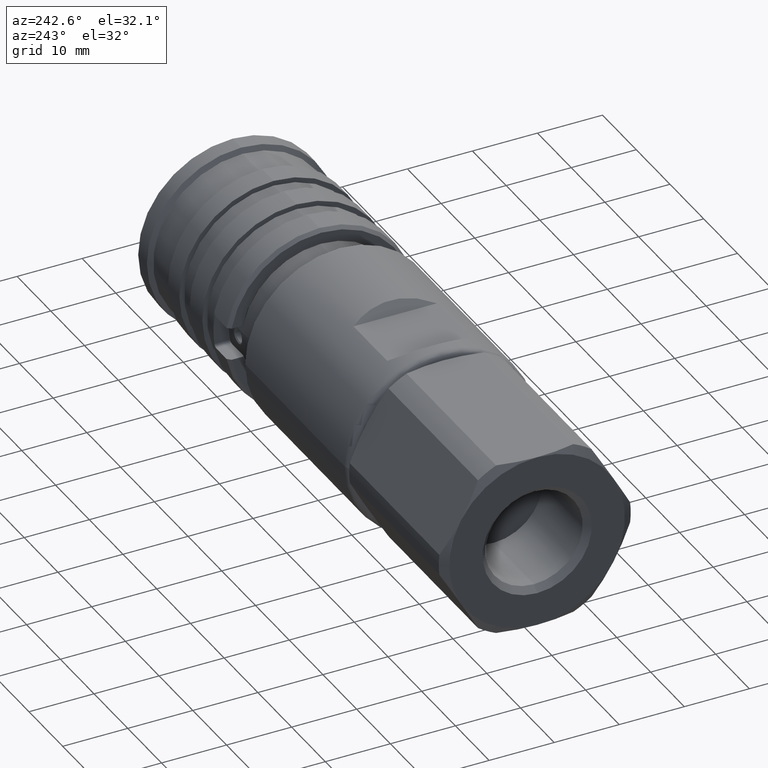
[diagram: clean part render]
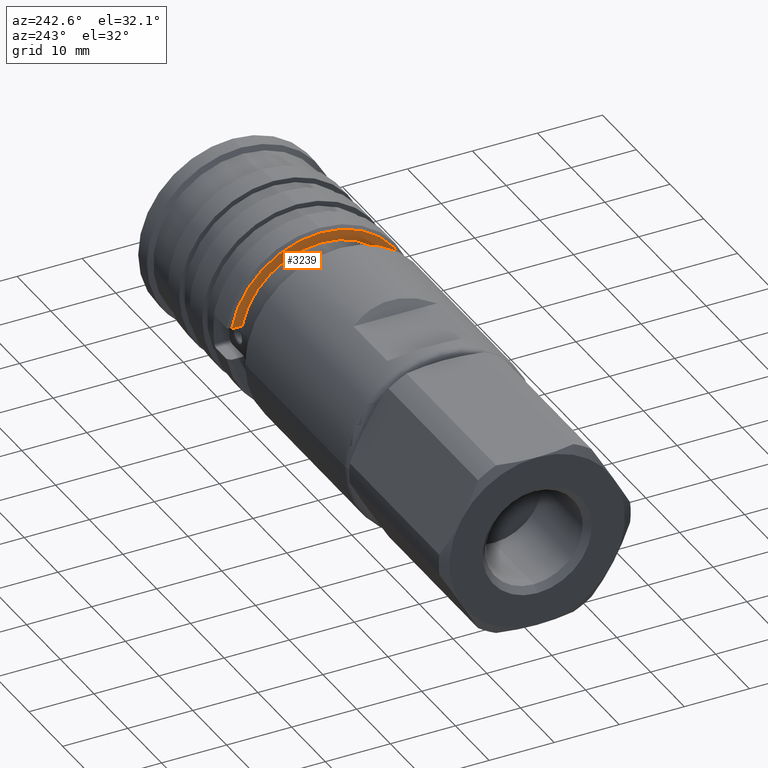
[diagram: same view with one face highlighted and labeled with its STEP entity id]
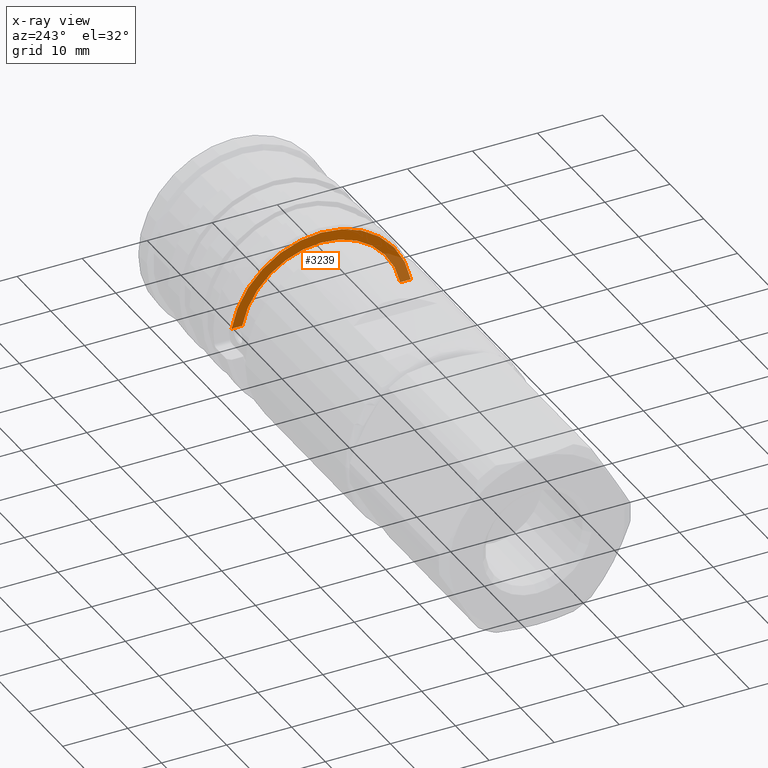
[diagram: x-ray of the same camera — body ghosted, the highlighted face saturated]
A machine part, auxiliary view. The second image highlights one B-rep face of the part: STEP entity #3239.
The next image is the same camera in x-ray: the body ghosted, the highlighted face saturated — about 14% of this face is hidden behind the body in this view.
In plain terms, the highlighted planar face has unit normal (-1, 0, -0).
Its self-contained STEP definition (entity closure, byte-faithful):
#45 = CARTESIAN_POINT ( 'NONE',  ( 18.39999999999999900, -12.14536948799830200, 2.499999999999997300 ) ) ;
#47 = CARTESIAN_POINT ( 'NONE',  ( 18.39999999999999900, -9.884099541659373900E-016, 12.40000000000000400 ) ) ;
#84 = VERTEX_POINT ( 'NONE', #45 ) ;
#85 = VERTEX_POINT ( 'NONE', #47 ) ;
#214 = VERTEX_POINT ( 'NONE', #566 ) ;
#227 = VERTEX_POINT ( 'NONE', #348 ) ;
#229 = VERTEX_POINT ( 'NONE', #346 ) ;
#346 = CARTESIAN_POINT ( 'NONE',  ( 18.39999999999999900, -13.77497731395590500, 2.499999999999996900 ) ) ;
#348 = CARTESIAN_POINT ( 'NONE',  ( 18.39999999999999900, 12.14536948799829800, 2.500000000000000000 ) ) ;
#380 = CARTESIAN_POINT ( 'NONE',  ( 18.39999999999999900, -9.884099541659373900E-016, 8.296725741381169100E-017 ) ) ;
#381 = DIRECTION ( 'NONE',  ( 1.000000000000000000, 0.0000000000000000000, 0.0000000000000000000 ) ) ;
#382 = DIRECTION ( 'NONE',  ( 0.0000000000000000000, 0.0000000000000000000, 1.000000000000000000 ) ) ;
#566 = CARTESIAN_POINT ( 'NONE',  ( 18.39999999999999900, 13.77497731395590100, 2.500000000000000400 ) ) ;
#675 = ORIENTED_EDGE ( 'NONE', *, *, #3020, .T. ) ;
#676 = ORIENTED_EDGE ( 'NONE', *, *, #3028, .T. ) ;
#677 = ORIENTED_EDGE ( 'NONE', *, *, #3029, .T. ) ;
#678 = ORIENTED_EDGE ( 'NONE', *, *, #2729, .T. ) ;
#679 = ORIENTED_EDGE ( 'NONE', *, *, #3030, .T. ) ;
#1100 = CIRCLE ( 'NONE', #3051, 12.40000000000000400 ) ;
#1449 = CIRCLE ( 'NONE', #3148, 13.99999999999999100 ) ;
#1461 = LINE ( 'NONE', #3609, #1463 ) ;
#1463 = VECTOR ( 'NONE', #3610, 1000.000000000000000 ) ;
#1465 = LINE ( 'NONE', #3605, #1468 ) ;
#1466 = CIRCLE ( 'NONE', #3154, 12.40000000000000400 ) ;
#1468 = VECTOR ( 'NONE', #3604, 1000.000000000000000 ) ;
#1507 = FACE_OUTER_BOUND ( 'NONE', #3400, .T. ) ;
#2729 = EDGE_CURVE ( 'NONE', #85, #84, #1100, .T. ) ;
#3020 = EDGE_CURVE ( 'NONE', #229, #214, #1449, .T. ) ;
#3028 = EDGE_CURVE ( 'NONE', #214, #227, #1461, .T. ) ;
#3029 = EDGE_CURVE ( 'NONE', #227, #85, #1466, .T. ) ;
#3030 = EDGE_CURVE ( 'NONE', #84, #229, #1465, .T. ) ;
#3051 = AXIS2_PLACEMENT_3D ( 'NONE', #380, #381, #382 ) ;
#3148 = AXIS2_PLACEMENT_3D ( 'NONE', #3642, #3641, #3640 ) ;
#3154 = AXIS2_PLACEMENT_3D ( 'NONE', #3608, #3607, #3606 ) ;
#3156 = AXIS2_PLACEMENT_3D ( 'NONE', #3472, #3471, #3470 ) ;
#3239 = ADVANCED_FACE ( 'NONE', ( #1507 ), #3473, .T. ) ;
#3400 = EDGE_LOOP ( 'NONE', ( #675, #676, #677, #678, #679 ) ) ;
#3470 = DIRECTION ( 'NONE',  ( -0.0000000000000000000, 0.0000000000000000000, 1.000000000000000000 ) ) ;
#3471 = DIRECTION ( 'NONE',  ( -1.000000000000000000, 0.0000000000000000000, -0.0000000000000000000 ) ) ;
#3472 = CARTESIAN_POINT ( 'NONE',  ( 18.39999999999999900, 12.10000000000000300, 8.296725741381169100E-017 ) ) ;
#3473 = PLANE ( 'NONE',  #3156 ) ;
#3604 = DIRECTION ( 'NONE',  ( 0.0000000000000000000, -1.000000000000000000, -1.156482317317871500E-016 ) ) ;
#3605 = CARTESIAN_POINT ( 'NONE',  ( 18.39999999999999900, 14.99999999999999800, 2.500000000000000400 ) ) ;
#3606 = DIRECTION ( 'NONE',  ( 0.0000000000000000000, -8.881784197001252300E-016, 1.000000000000000000 ) ) ;
#3607 = DIRECTION ( 'NONE',  ( 1.000000000000000000, 0.0000000000000000000, 0.0000000000000000000 ) ) ;
#3608 = CARTESIAN_POINT ( 'NONE',  ( 18.39999999999999900, -9.884099541659373900E-016, 8.296725741381169100E-017 ) ) ;
#3609 = CARTESIAN_POINT ( 'NONE',  ( 18.39999999999999900, 14.99999999999999800, 2.500000000000000400 ) ) ;
#3610 = DIRECTION ( 'NONE',  ( 0.0000000000000000000, -1.000000000000000000, -1.156482317317871500E-016 ) ) ;
#3640 = DIRECTION ( 'NONE',  ( 0.0000000000000000000, 0.0000000000000000000, 1.000000000000000000 ) ) ;
#3641 = DIRECTION ( 'NONE',  ( -1.000000000000000000, -0.0000000000000000000, -0.0000000000000000000 ) ) ;
#3642 = CARTESIAN_POINT ( 'NONE',  ( 18.39999999999999900, -9.884099541659373900E-016, 8.296725741381169100E-017 ) ) ;